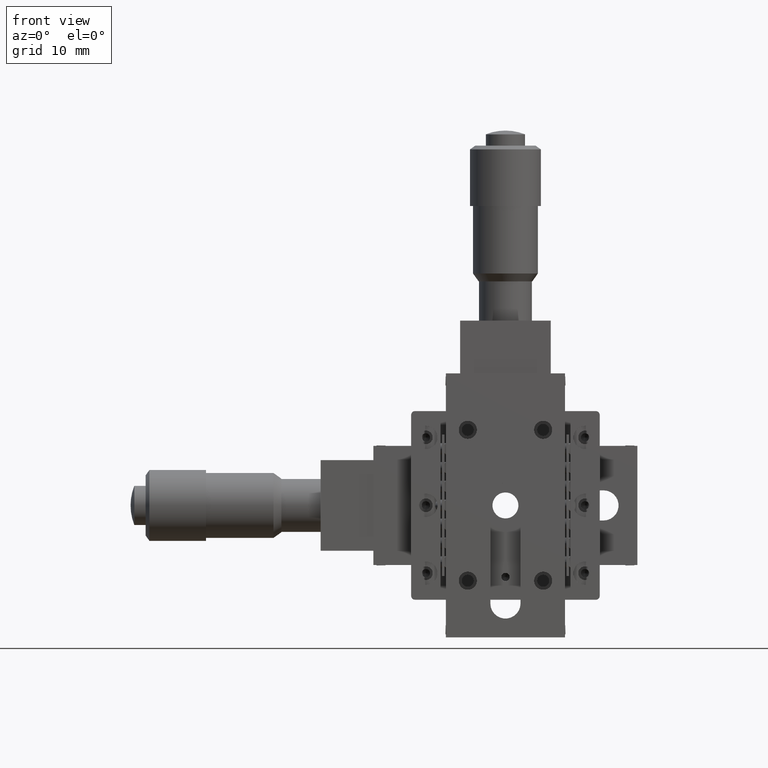
[diagram: clean part render]
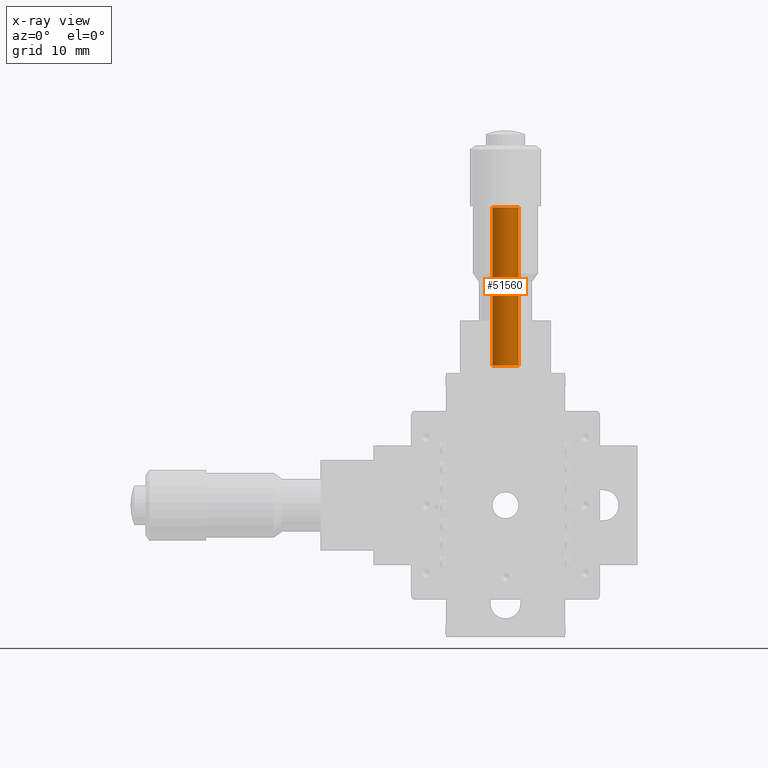
[diagram: x-ray — body ghosted, one internal face saturated and labeled with its STEP entity id]
A machine part, front view, then the same camera in x-ray: the body is ghosted and one INTERNAL B-rep face — a face not visible from any outside direction — is saturated and labeled: STEP entity #51560.
In plain terms, the highlighted cylindrical surface (edge-blend (fillet) strip) has radius 1.75 mm, axis along (-0, -0, -1).
Its self-contained STEP definition (entity closure, byte-faithful):
#139 = CIRCLE ( 'NONE', #22371, 1.750000000000002900 ) ;
#765 = DIRECTION ( 'NONE',  ( -1.110223024626044000E-016, -1.762506864451433600E-016, -1.000000000000000000 ) ) ;
#4964 = CARTESIAN_POINT ( 'NONE',  ( 4.637034373615673300E-015, 6.199999999999921100, 39.50000000000000700 ) ) ;
#5215 = DIRECTION ( 'NONE',  ( -0.9995725314435851500, 0.02923618277858829100, 0.0000000000000000000 ) ) ;
#5655 = CARTESIAN_POINT ( 'NONE',  ( 1.749251930026276800, 6.148836680137389300, 18.50000000000000400 ) ) ;
#9716 = VERTEX_POINT ( 'NONE', #32753 ) ;
#13387 = VERTEX_POINT ( 'NONE', #5655 ) ;
#13516 = EDGE_CURVE ( 'NONE', #9716, #13387, #14213, .T. ) ;
#13796 = EDGE_CURVE ( 'NONE', #9716, #50515, #33844, .T. ) ;
#14213 = LINE ( 'NONE', #49085, #27807 ) ;
#14778 = DIRECTION ( 'NONE',  ( -1.110223024626044000E-016, -1.762506864451433100E-016, -1.000000000000000000 ) ) ;
#15633 = ORIENTED_EDGE ( 'NONE', *, *, #18762, .T. ) ;
#18762 = EDGE_CURVE ( 'NONE', #13387, #48547, #139, .T. ) ;
#22292 = DIRECTION ( 'NONE',  ( -1.110223024626044000E-016, -1.762506864451433100E-016, -1.000000000000000000 ) ) ;
#22371 = AXIS2_PLACEMENT_3D ( 'NONE', #49207, #22292, #32824 ) ;
#27443 = DIRECTION ( 'NONE',  ( -1.110223024626044000E-016, -1.762506864451433600E-016, -1.000000000000000000 ) ) ;
#27807 = VECTOR ( 'NONE', #27443, 1000.000000000000000 ) ;
#31143 = AXIS2_PLACEMENT_3D ( 'NONE', #63535, #14778, #52807 ) ;
#31314 = EDGE_LOOP ( 'NONE', ( #54553, #53544, #15633, #45874 ) ) ;
#31839 = EDGE_CURVE ( 'NONE', #50515, #48547, #59755, .T. ) ;
#32753 = CARTESIAN_POINT ( 'NONE',  ( 1.749251930026278500, 6.148836680137389300, 39.50000000000000700 ) ) ;
#32824 = DIRECTION ( 'NONE',  ( -0.9995725314435850400, 0.02923618277858829100, 0.0000000000000000000 ) ) ;
#33279 = CYLINDRICAL_SURFACE ( 'NONE', #58203, 1.750000000000002900 ) ;
#33844 = CIRCLE ( 'NONE', #31143, 1.750000000000002900 ) ;
#34981 = FACE_OUTER_BOUND ( 'NONE', #31314, .T. ) ;
#44045 = CARTESIAN_POINT ( 'NONE',  ( -1.749251930026272300, 6.251163319862450300, 39.50000000000000700 ) ) ;
#44213 = CARTESIAN_POINT ( 'NONE',  ( -1.749251930026272300, 6.251163319862450300, 39.50000000000000700 ) ) ;
#45300 = VECTOR ( 'NONE', #765, 1000.000000000000000 ) ;
#45874 = ORIENTED_EDGE ( 'NONE', *, *, #31839, .F. ) ;
#47005 = CARTESIAN_POINT ( 'NONE',  ( -1.749251930026274500, 6.251163319862435200, 18.50000000000000400 ) ) ;
#48504 = DIRECTION ( 'NONE',  ( -1.110223024626044000E-016, -1.762506864451433600E-016, -1.000000000000000000 ) ) ;
#48547 = VERTEX_POINT ( 'NONE', #47005 ) ;
#49085 = CARTESIAN_POINT ( 'NONE',  ( 1.749251930026281400, 6.148836680137391000, 39.50000000000000700 ) ) ;
#49207 = CARTESIAN_POINT ( 'NONE',  ( 2.276824562219559300E-015, 6.199999999999905100, 18.50000000000000400 ) ) ;
#50515 = VERTEX_POINT ( 'NONE', #44213 ) ;
#51560 = ADVANCED_FACE ( 'NONE', ( #34981 ), #33279, .F. ) ;
#52807 = DIRECTION ( 'NONE',  ( -0.9995725314435851500, 0.02923618277858829100, 0.0000000000000000000 ) ) ;
#53544 = ORIENTED_EDGE ( 'NONE', *, *, #13516, .T. ) ;
#54553 = ORIENTED_EDGE ( 'NONE', *, *, #13796, .F. ) ;
#58203 = AXIS2_PLACEMENT_3D ( 'NONE', #4964, #48504, #5215 ) ;
#59755 = LINE ( 'NONE', #44045, #45300 ) ;
#63535 = CARTESIAN_POINT ( 'NONE',  ( 4.637034373615673300E-015, 6.199999999999921100, 39.50000000000000700 ) ) ;